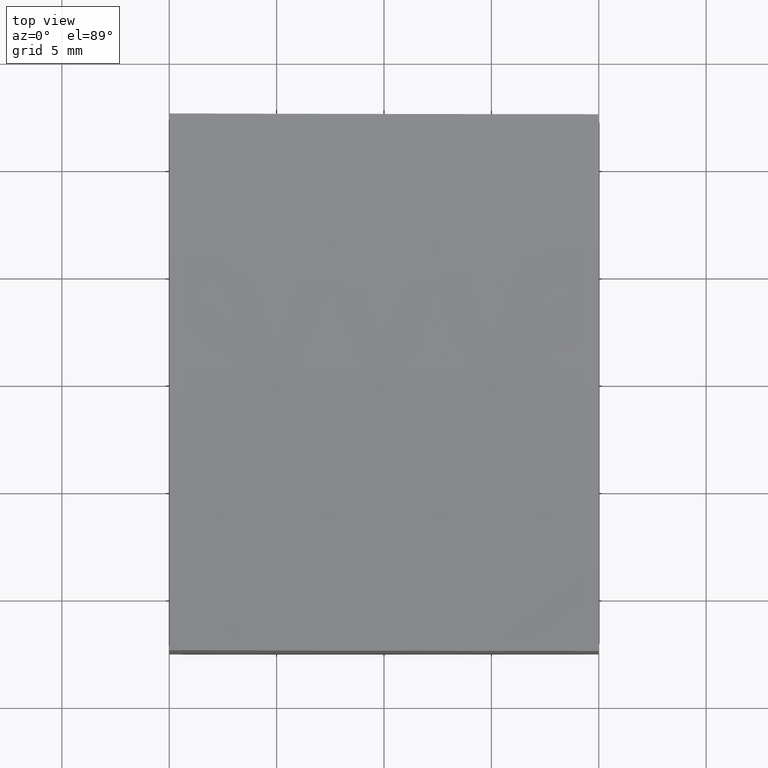
[diagram: clean part render]
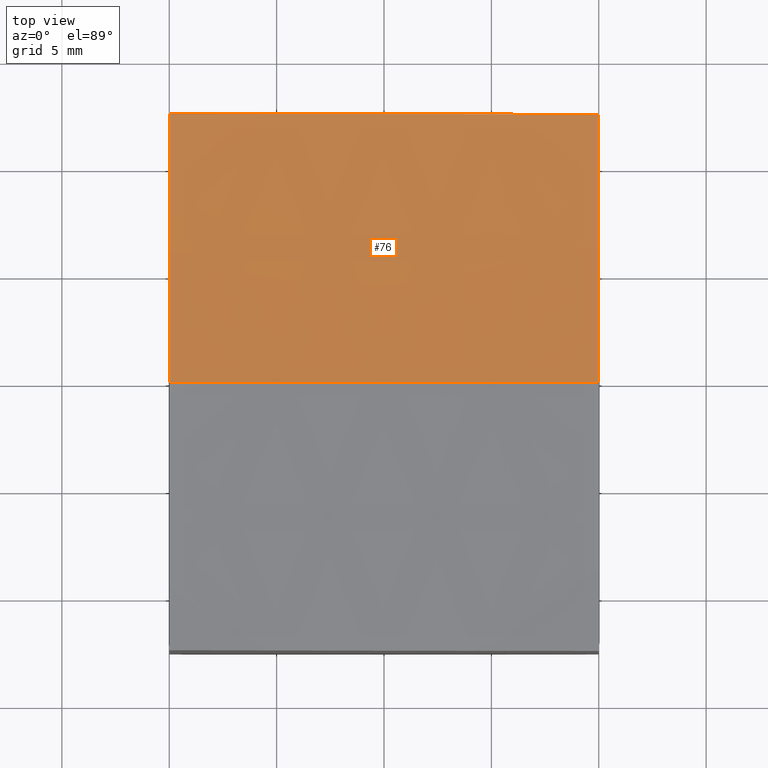
[diagram: same view with one face highlighted and labeled with its STEP entity id]
A machine part, top view. The second image highlights one B-rep face of the part: STEP entity #76.
In plain terms, the highlighted spherical surface has radius 150 mm.
Its self-contained STEP definition (entity closure, byte-faithful):
#8 = EDGE_CURVE ( 'NONE', #121, #251, #205, .T. ) ;
#9 = CARTESIAN_POINT ( 'NONE',  ( -9.999999999999998224, 0.000000000000000000, 149.0000000000000000 ) ) ;
#15 = AXIS2_PLACEMENT_3D ( 'NONE', #9, #203, #175 ) ;
#22 = AXIS2_PLACEMENT_3D ( 'NONE', #223, #48, #75 ) ;
#24 = SPHERICAL_SURFACE ( 'NONE', #45, 150.0000000000000284 ) ;
#27 = DIRECTION ( 'NONE',  ( 1.000000000000000000, 1.740778375628798863E-16, 0.000000000000000000 ) ) ;
#45 = AXIS2_PLACEMENT_3D ( 'NONE', #73, #110, #276 ) ;
#48 = DIRECTION ( 'NONE',  ( 0.000000000000000000, -1.000000000000000000, 0.000000000000000000 ) ) ;
#57 = AXIS2_PLACEMENT_3D ( 'NONE', #111, #160, #246 ) ;
#73 = CARTESIAN_POINT ( 'NONE',  ( 15.00000000000001954, 0.000000000000000000, 149.0000000000000000 ) ) ;
#75 = DIRECTION ( 'NONE',  ( 0.000000000000000000, 0.000000000000000000, -1.000000000000000000 ) ) ;
#76 = ADVANCED_FACE ( 'NONE', ( #93 ), #24, .F. ) ;
#80 = ORIENTED_EDGE ( 'NONE', *, *, #173, .T. ) ;
#93 = FACE_OUTER_BOUND ( 'NONE', #115, .T. ) ;
#101 = VERTEX_POINT ( 'NONE', #219 ) ;
#110 = DIRECTION ( 'NONE',  ( 0.000000000000000000, 1.000000000000000000, -0.000000000000000000 ) ) ;
#111 = CARTESIAN_POINT ( 'NONE',  ( 10.00000000000000178, 0.000000000000000000, 149.0000000000000000 ) ) ;
#115 = EDGE_LOOP ( 'NONE', ( #163, #80, #265, #249 ) ) ;
#117 = CIRCLE ( 'NONE', #22, 150.0000000000000284 ) ;
#121 = VERTEX_POINT ( 'NONE', #216 ) ;
#160 = DIRECTION ( 'NONE',  ( -1.000000000000000000, 0.000000000000000000, 0.000000000000000000 ) ) ;
#162 = CIRCLE ( 'NONE', #57, 149.9166435056495175 ) ;
#163 = ORIENTED_EDGE ( 'NONE', *, *, #168, .F. ) ;
#168 = EDGE_CURVE ( 'NONE', #101, #121, #193, .T. ) ;
#173 = EDGE_CURVE ( 'NONE', #101, #189, #117, .T. ) ;
#175 = DIRECTION ( 'NONE',  ( 0.000000000000000000, 0.000000000000000000, -1.000000000000000000 ) ) ;
#181 = EDGE_CURVE ( 'NONE', #251, #189, #162, .T. ) ;
#189 = VERTEX_POINT ( 'NONE', #220 ) ;
#193 = CIRCLE ( 'NONE', #15, 147.9019945774904272 ) ;
#203 = DIRECTION ( 'NONE',  ( 1.000000000000000000, 0.000000000000000000, 0.000000000000000000 ) ) ;
#205 = CIRCLE ( 'NONE', #242, 149.4782592887674753 ) ;
#216 = CARTESIAN_POINT ( 'NONE',  ( -9.999999999999996447, 12.49999999999999645, 1.627173468105036491 ) ) ;
#219 = CARTESIAN_POINT ( 'NONE',  ( -9.999999999999998224, 0.000000000000000000, 1.098005422509568119 ) ) ;
#220 = CARTESIAN_POINT ( 'NONE',  ( 10.00000000000000178, 0.000000000000000000, -0.9166435056495170208 ) ) ;
#223 = CARTESIAN_POINT ( 'NONE',  ( 15.00000000000001954, 0.000000000000000000, 149.0000000000000000 ) ) ;
#240 = DIRECTION ( 'NONE',  ( 1.734723475976807094E-16, -1.000000000000000000, 0.000000000000000000 ) ) ;
#242 = AXIS2_PLACEMENT_3D ( 'NONE', #245, #240, #27 ) ;
#244 = CARTESIAN_POINT ( 'NONE',  ( 10.00000000000000178, 12.50000000000000000, -0.3946116832866386481 ) ) ;
#245 = CARTESIAN_POINT ( 'NONE',  ( 15.00000000000001776, 12.50000000000000178, 149.0000000000000000 ) ) ;
#246 = DIRECTION ( 'NONE',  ( 0.000000000000000000, 0.000000000000000000, 1.000000000000000000 ) ) ;
#249 = ORIENTED_EDGE ( 'NONE', *, *, #8, .F. ) ;
#251 = VERTEX_POINT ( 'NONE', #244 ) ;
#265 = ORIENTED_EDGE ( 'NONE', *, *, #181, .F. ) ;
#276 = DIRECTION ( 'NONE',  ( -1.000000000000000000, 0.000000000000000000, 0.000000000000000000 ) ) ;